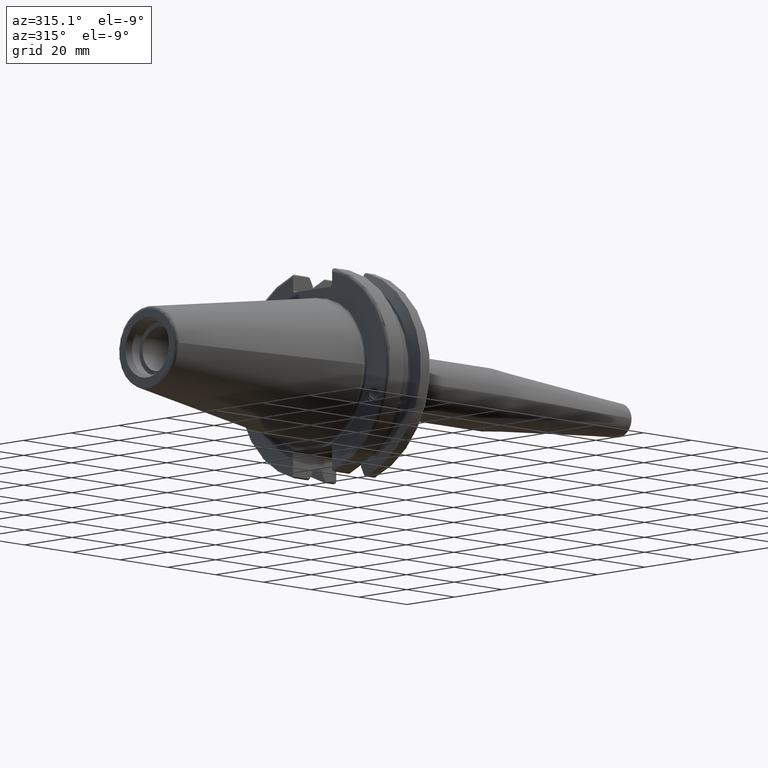
[diagram: clean part render]
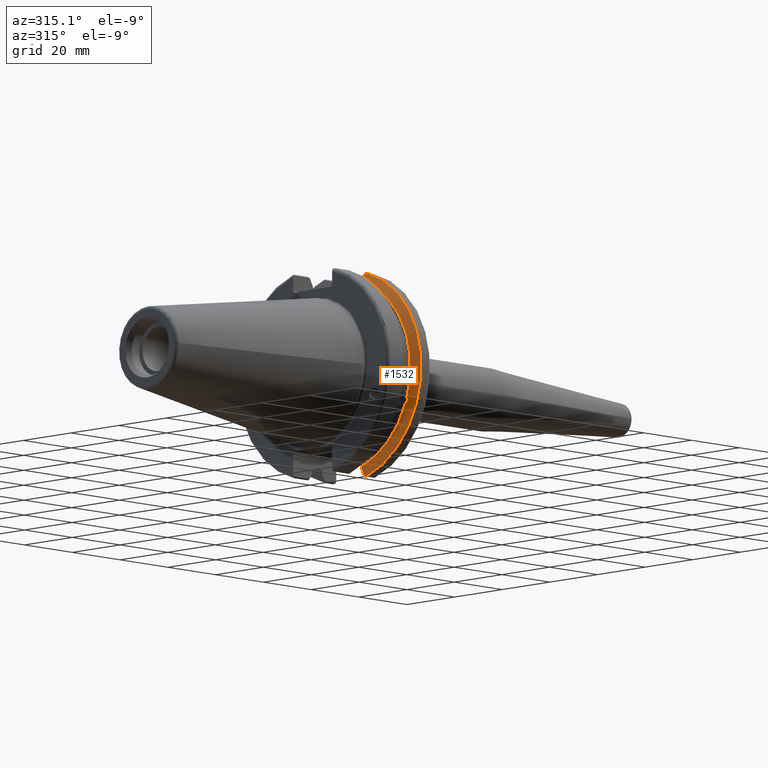
[diagram: same view with one face highlighted and labeled with its STEP entity id]
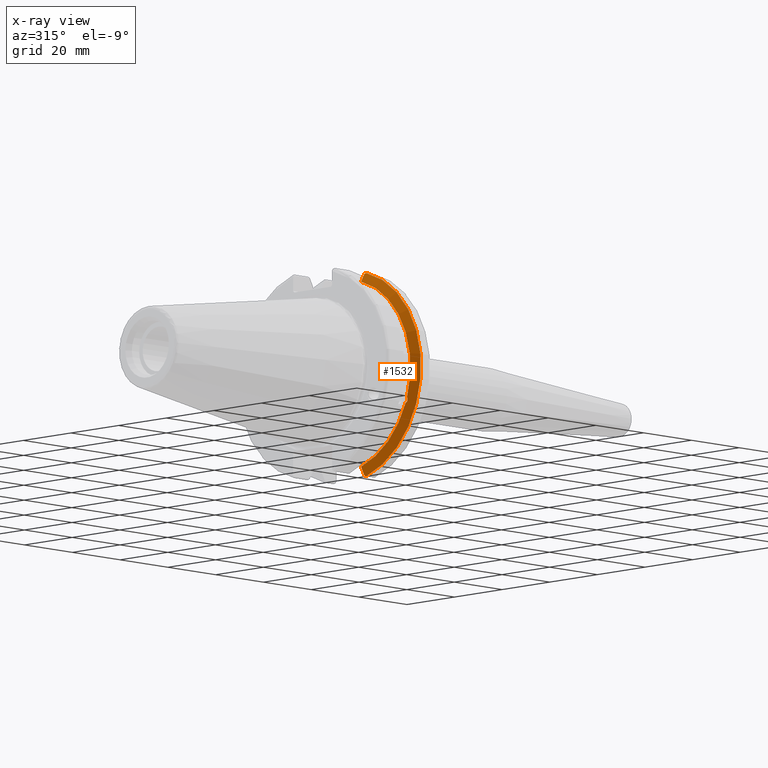
[diagram: x-ray of the same camera — body ghosted, the highlighted face saturated]
A machine part, auxiliary view. The second image highlights one B-rep face of the part: STEP entity #1532.
The next image is the same camera in x-ray: the body ghosted, the highlighted face saturated — about 0% of this face is hidden behind the body in this view.
In plain terms, the highlighted conical surface has half-angle 60 deg.
Its self-contained STEP definition (entity closure, byte-faithful):
#15=(
BOUNDED_CURVE()
B_SPLINE_CURVE(2,(#2540,#2541,#2542),.UNSPECIFIED.,.F.,.F.)
B_SPLINE_CURVE_WITH_KNOTS((3,3),(0.,0.276549142796805),.UNSPECIFIED.)
CURVE()
GEOMETRIC_REPRESENTATION_ITEM()
RATIONAL_B_SPLINE_CURVE((1.,1.00095203904186,1.00031614445102))
REPRESENTATION_ITEM('')
);
#16=(
BOUNDED_CURVE()
B_SPLINE_CURVE(2,(#2544,#2545,#2546),.UNSPECIFIED.,.F.,.F.)
B_SPLINE_CURVE_WITH_KNOTS((3,3),(0.,0.0639048713676002),.UNSPECIFIED.)
CURVE()
GEOMETRIC_REPRESENTATION_ITEM()
RATIONAL_B_SPLINE_CURVE((1.,1.0002844421828,1.00047644010568))
REPRESENTATION_ITEM('')
);
#17=(
BOUNDED_CURVE()
B_SPLINE_CURVE(2,(#2550,#2551,#2552),.UNSPECIFIED.,.F.,.F.)
B_SPLINE_CURVE_WITH_KNOTS((3,3),(0.329353533631192,0.393258405001023),
 .UNSPECIFIED.)
CURVE()
GEOMETRIC_REPRESENTATION_ITEM()
RATIONAL_B_SPLINE_CURVE((1.00047644010581,1.00028444218288,1.))
REPRESENTATION_ITEM('')
);
#18=(
BOUNDED_CURVE()
B_SPLINE_CURVE(2,(#2554,#2555,#2556),.UNSPECIFIED.,.F.,.F.)
B_SPLINE_CURVE_WITH_KNOTS((3,3),(0.0550586467390284,0.331607789535849),
 .UNSPECIFIED.)
CURVE()
GEOMETRIC_REPRESENTATION_ITEM()
RATIONAL_B_SPLINE_CURVE((1.00031614445116,1.00095203904229,1.))
REPRESENTATION_ITEM('')
);
#55=B_SPLINE_CURVE_WITH_KNOTS('',3,(#2447,#2448,#2449,#2450,#2451,#2452,
#2453,#2454),.UNSPECIFIED.,.F.,.F.,(4,2,2,4),(0.451995700189026,0.46454782854766,
0.504528771685166,0.544509714822671),.UNSPECIFIED.);
#59=B_SPLINE_CURVE_WITH_KNOTS('',3,(#2509,#2510,#2511,#2512,#2513,#2514,
#2515,#2516),.UNSPECIFIED.,.F.,.F.,(4,2,2,4),(0.544509714822671,0.584490657960176,
0.624471601097681,0.637023729456314),.UNSPECIFIED.);
#85=CONICAL_SURFACE('',#1678,30.3546886482472,1.0471975511966);
#387=FACE_OUTER_BOUND('',#481,.T.);
#481=EDGE_LOOP('',(#1145,#1146,#1147,#1148,#1149,#1150,#1151,#1152,#1153));
#582=CIRCLE('',#1679,28.9593772964944);
#583=CIRCLE('',#1680,31.75);
#584=CIRCLE('',#1681,28.9593772964944);
#672=VERTEX_POINT('',#2444);
#673=VERTEX_POINT('',#2446);
#680=VERTEX_POINT('',#2507);
#686=VERTEX_POINT('',#2537);
#687=VERTEX_POINT('',#2539);
#688=VERTEX_POINT('',#2543);
#689=VERTEX_POINT('',#2547);
#690=VERTEX_POINT('',#2549);
#691=VERTEX_POINT('',#2553);
#843=EDGE_CURVE('',#673,#672,#55,.T.);
#851=EDGE_CURVE('',#672,#680,#59,.T.);
#860=EDGE_CURVE('',#680,#686,#582,.T.);
#861=EDGE_CURVE('',#686,#687,#15,.T.);
#862=EDGE_CURVE('',#688,#687,#16,.T.);
#863=EDGE_CURVE('',#689,#688,#583,.T.);
#864=EDGE_CURVE('',#690,#689,#17,.T.);
#865=EDGE_CURVE('',#690,#691,#18,.T.);
#866=EDGE_CURVE('',#691,#673,#584,.T.);
#1145=ORIENTED_EDGE('',*,*,#843,.T.);
#1146=ORIENTED_EDGE('',*,*,#851,.T.);
#1147=ORIENTED_EDGE('',*,*,#860,.T.);
#1148=ORIENTED_EDGE('',*,*,#861,.T.);
#1149=ORIENTED_EDGE('',*,*,#862,.F.);
#1150=ORIENTED_EDGE('',*,*,#863,.F.);
#1151=ORIENTED_EDGE('',*,*,#864,.F.);
#1152=ORIENTED_EDGE('',*,*,#865,.T.);
#1153=ORIENTED_EDGE('',*,*,#866,.T.);
#1532=ADVANCED_FACE('',(#387),#85,.T.);
#1678=AXIS2_PLACEMENT_3D('',#2536,#1946,#1947);
#1679=AXIS2_PLACEMENT_3D('',#2538,#1948,#1949);
#1680=AXIS2_PLACEMENT_3D('',#2548,#1950,#1951);
#1681=AXIS2_PLACEMENT_3D('',#2557,#1952,#1953);
#1946=DIRECTION('center_axis',(1.,0.,0.));
#1947=DIRECTION('ref_axis',(0.,-1.,-1.22464679914735E-16));
#1948=DIRECTION('center_axis',(1.,0.,0.));
#1949=DIRECTION('ref_axis',(0.,0.,-1.));
#1950=DIRECTION('center_axis',(1.,0.,0.));
#1951=DIRECTION('ref_axis',(0.,0.,-1.));
#1952=DIRECTION('center_axis',(1.,0.,0.));
#1953=DIRECTION('ref_axis',(0.,0.,-1.));
#2444=CARTESIAN_POINT('',(13.276,-27.51401829017,-10.0142836826777));
#2446=CARTESIAN_POINT('',(13.091,-27.4956274489925,-9.09043478536249));
#2447=CARTESIAN_POINT('Ctrl Pts',(13.091,-27.4956274489925,-9.09043478536248));
#2448=CARTESIAN_POINT('Ctrl Pts',(13.1051204071996,-27.5087667900418,-9.12860597076219));
#2449=CARTESIAN_POINT('Ctrl Pts',(13.1185929817857,-27.5206055003512,-9.16696618806878));
#2450=CARTESIAN_POINT('Ctrl Pts',(13.171981441159,-27.5642934663232,-9.32791534028655));
#2451=CARTESIAN_POINT('Ctrl Pts',(13.2101197084175,-27.5867382255984,-9.46717946402648));
#2452=CARTESIAN_POINT('Ctrl Pts',(13.2623106446058,-27.5847569104122,-9.74771639360671));
#2453=CARTESIAN_POINT('Ctrl Pts',(13.276,-27.559599249844,-9.8890510252165));
#2454=CARTESIAN_POINT('Ctrl Pts',(13.276,-27.51401829017,-10.0142836826777));
#2507=CARTESIAN_POINT('',(13.091,-26.9060914640649,-10.710171591907));
#2509=CARTESIAN_POINT('Ctrl Pts',(13.276,-27.51401829017,-10.0142836826777));
#2510=CARTESIAN_POINT('Ctrl Pts',(13.276,-27.4684373304961,-10.139516340139));
#2511=CARTESIAN_POINT('Ctrl Pts',(13.2623106446058,-27.3968610665578,-10.2639559818059));
#2512=CARTESIAN_POINT('Ctrl Pts',(13.2101197084175,-27.2180531796526,-10.4801333026531));
#2513=CARTESIAN_POINT('Ctrl Pts',(13.171981441159,-27.1113422433189,-10.5723885976054));
#2514=CARTESIAN_POINT('Ctrl Pts',(13.1185929817857,-26.9744191989197,-10.6676007180673));
#2515=CARTESIAN_POINT('Ctrl Pts',(13.1051204071996,-26.9406927482839,-10.6893765730703));
#2516=CARTESIAN_POINT('Ctrl Pts',(13.091,-26.9060914640649,-10.7101715919071));
#2536=CARTESIAN_POINT('Origin',(13.8965833845378,0.,0.));
#2537=CARTESIAN_POINT('',(13.091,-8.19,-27.7771386827498));
#2538=CARTESIAN_POINT('Origin',(13.091,0.,0.));
#2539=CARTESIAN_POINT('',(14.4234146964874,-8.19,-30.1755016258903));
#2540=CARTESIAN_POINT('Ctrl Pts',(13.091,-8.19,-27.7771386827498));
#2541=CARTESIAN_POINT('Ctrl Pts',(13.7296364384735,-8.19,-28.9303689539659));
#2542=CARTESIAN_POINT('Ctrl Pts',(14.4234146964874,-8.19,-30.1755016258903));
#2543=CARTESIAN_POINT('',(14.7021667690756,-8.67204822802685,-30.5427254764662));
#2544=CARTESIAN_POINT('Ctrl Pts',(14.7021667690756,-8.67204822802686,-30.5427254764662));
#2545=CARTESIAN_POINT('Ctrl Pts',(14.5611085187837,-8.42917748262647,-30.357706789263));
#2546=CARTESIAN_POINT('Ctrl Pts',(14.4234146964874,-8.19,-30.1755016258903));
#2547=CARTESIAN_POINT('',(14.7021667690756,-8.67204822802685,30.5427254764662));
#2548=CARTESIAN_POINT('Origin',(14.7021667690756,0.,0.));
#2549=CARTESIAN_POINT('',(14.4234146964874,-8.19,30.1755016258903));
#2550=CARTESIAN_POINT('Ctrl Pts',(14.4234146964874,-8.19,30.1755016258903));
#2551=CARTESIAN_POINT('Ctrl Pts',(14.5611085187884,-8.42917748263466,30.3577067892692));
#2552=CARTESIAN_POINT('Ctrl Pts',(14.7021667690756,-8.67204822802685,30.5427254764662));
#2553=CARTESIAN_POINT('',(13.091,-8.19,27.7771386827498));
#2554=CARTESIAN_POINT('Ctrl Pts',(14.4234146964874,-8.19,30.1755016258903));
#2555=CARTESIAN_POINT('Ctrl Pts',(13.7296364384736,-8.19,28.9303689539661));
#2556=CARTESIAN_POINT('Ctrl Pts',(13.091,-8.19,27.7771386827498));
#2557=CARTESIAN_POINT('Origin',(13.091,0.,0.));